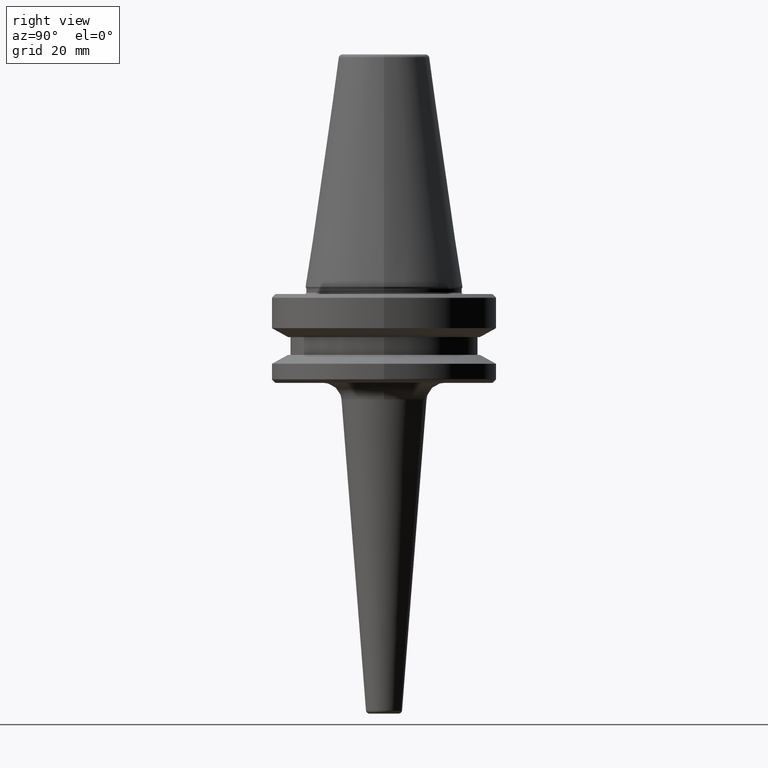
[diagram: clean part render]
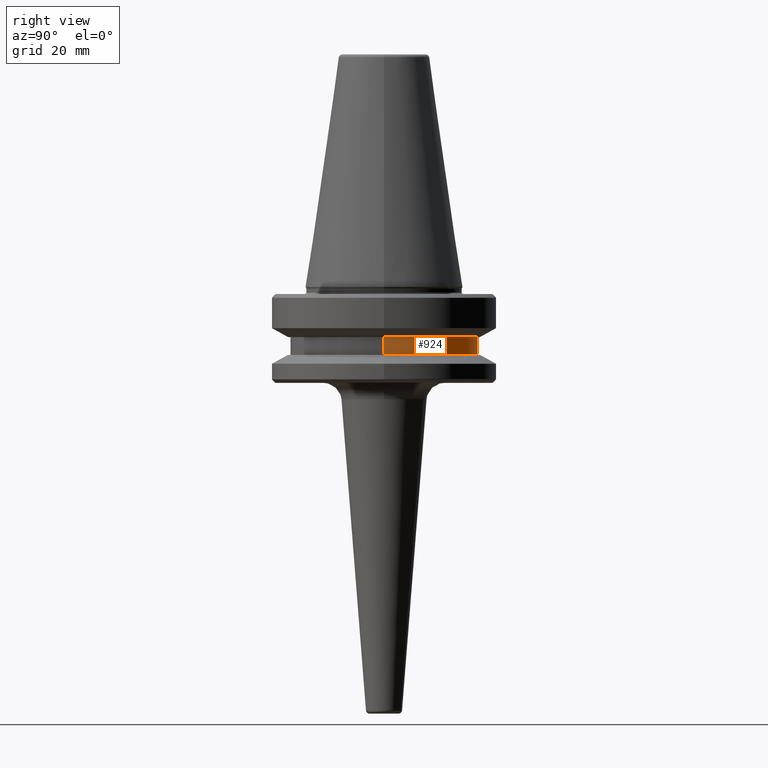
[diagram: same view with one face highlighted and labeled with its STEP entity id]
A machine part, right view. The second image highlights one B-rep face of the part: STEP entity #924.
In plain terms, the highlighted cylindrical surface (partial cylindrical patch) has radius 26.5 mm, axis along (-0, -0, 1).
Its self-contained STEP definition (entity closure, byte-faithful):
#9 = CARTESIAN_POINT ( 'NONE',  ( 0.0000000000000000000, 0.0000000000000000000, -14.10000000000000100 ) ) ;
#57 = DIRECTION ( 'NONE',  ( -0.0000000000000000000, -0.0000000000000000000, 1.000000000000000000 ) ) ;
#143 = ORIENTED_EDGE ( 'NONE', *, *, #1059, .T. ) ;
#149 = DIRECTION ( 'NONE',  ( -0.0000000000000000000, -0.0000000000000000000, 1.000000000000000000 ) ) ;
#170 = CARTESIAN_POINT ( 'NONE',  ( -26.50000000000000000, 3.245314017740485800E-015, -14.10000000000000100 ) ) ;
#188 = DIRECTION ( 'NONE',  ( -0.0000000000000000000, -0.0000000000000000000, 1.000000000000000000 ) ) ;
#202 = LINE ( 'NONE', #673, #663 ) ;
#215 = VERTEX_POINT ( 'NONE', #412 ) ;
#220 = VECTOR ( 'NONE', #57, 1000.000000000000000 ) ;
#225 = CIRCLE ( 'NONE', #464, 26.50000000000000000 ) ;
#364 = EDGE_CURVE ( 'NONE', #936, #215, #225, .T. ) ;
#387 = EDGE_LOOP ( 'NONE', ( #615, #143, #1180, #958 ) ) ;
#412 = CARTESIAN_POINT ( 'NONE',  ( -26.50000000000000000, 3.245314017740485800E-015, -19.10000000000000500 ) ) ;
#423 = CYLINDRICAL_SURFACE ( 'NONE', #681, 26.50000000000000000 ) ;
#448 = EDGE_CURVE ( 'NONE', #936, #981, #202, .T. ) ;
#464 = AXIS2_PLACEMENT_3D ( 'NONE', #602, #149, #1182 ) ;
#471 = LINE ( 'NONE', #906, #220 ) ;
#548 = DIRECTION ( 'NONE',  ( 1.000000000000000000, 0.0000000000000000000, 0.0000000000000000000 ) ) ;
#587 = VERTEX_POINT ( 'NONE', #170 ) ;
#592 = CARTESIAN_POINT ( 'NONE',  ( 0.0000000000000000000, 0.0000000000000000000, 69.75694866325665100 ) ) ;
#600 = AXIS2_PLACEMENT_3D ( 'NONE', #9, #188, #548 ) ;
#602 = CARTESIAN_POINT ( 'NONE',  ( 0.0000000000000000000, 0.0000000000000000000, -19.10000000000000500 ) ) ;
#608 = DIRECTION ( 'NONE',  ( -0.0000000000000000000, -0.0000000000000000000, 1.000000000000000000 ) ) ;
#612 = DIRECTION ( 'NONE',  ( -0.0000000000000000000, -0.0000000000000000000, 1.000000000000000000 ) ) ;
#615 = ORIENTED_EDGE ( 'NONE', *, *, #364, .T. ) ;
#634 = DIRECTION ( 'NONE',  ( 1.000000000000000000, 0.0000000000000000000, 0.0000000000000000000 ) ) ;
#663 = VECTOR ( 'NONE', #608, 1000.000000000000000 ) ;
#673 = CARTESIAN_POINT ( 'NONE',  ( 26.50000000000000000, 0.0000000000000000000, 69.75694866325665100 ) ) ;
#681 = AXIS2_PLACEMENT_3D ( 'NONE', #592, #612, #634 ) ;
#693 = FACE_OUTER_BOUND ( 'NONE', #387, .T. ) ;
#858 = CARTESIAN_POINT ( 'NONE',  ( 26.50000000000000000, 0.0000000000000000000, -14.10000000000000100 ) ) ;
#906 = CARTESIAN_POINT ( 'NONE',  ( -26.50000000000000000, 3.245314017740485800E-015, 69.75694866325665100 ) ) ;
#924 = ADVANCED_FACE ( 'NONE', ( #693 ), #423, .T. ) ;
#936 = VERTEX_POINT ( 'NONE', #1086 ) ;
#943 = EDGE_CURVE ( 'NONE', #981, #587, #951, .T. ) ;
#951 = CIRCLE ( 'NONE', #600, 26.50000000000000000 ) ;
#958 = ORIENTED_EDGE ( 'NONE', *, *, #448, .F. ) ;
#981 = VERTEX_POINT ( 'NONE', #858 ) ;
#1059 = EDGE_CURVE ( 'NONE', #215, #587, #471, .T. ) ;
#1086 = CARTESIAN_POINT ( 'NONE',  ( 26.50000000000000000, 0.0000000000000000000, -19.10000000000000500 ) ) ;
#1180 = ORIENTED_EDGE ( 'NONE', *, *, #943, .F. ) ;
#1182 = DIRECTION ( 'NONE',  ( 1.000000000000000000, 0.0000000000000000000, 0.0000000000000000000 ) ) ;